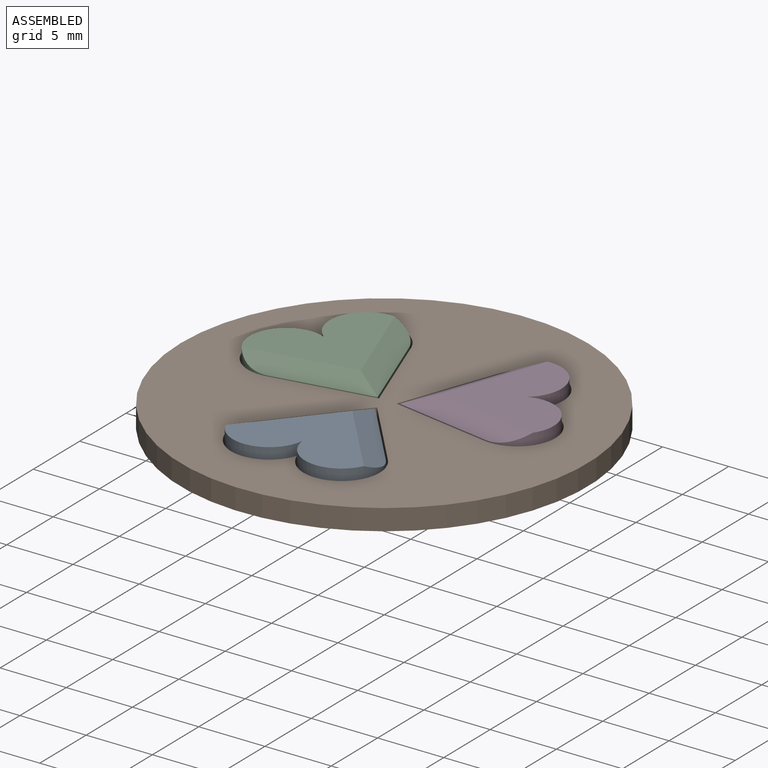
[diagram: assembled view]
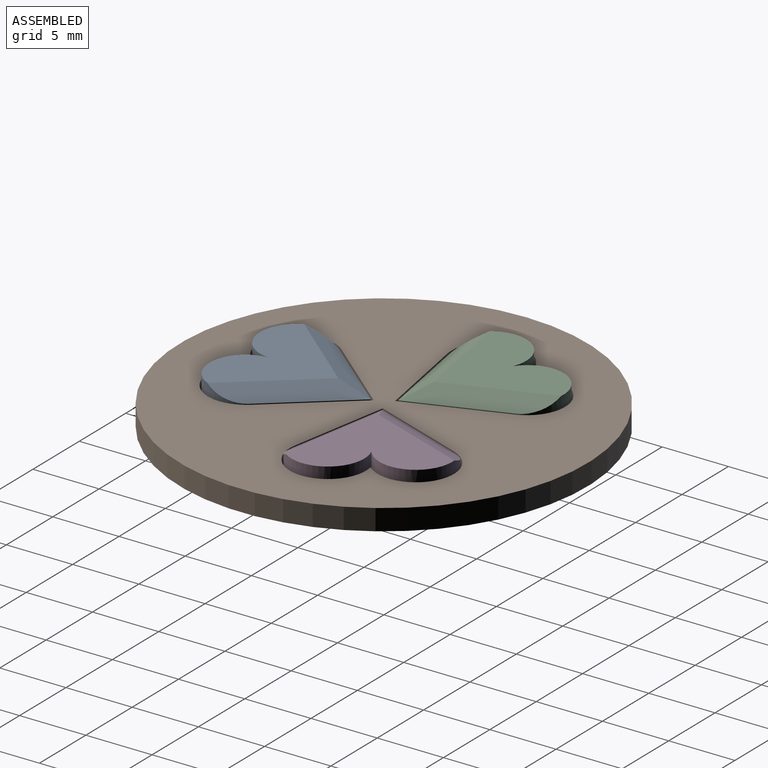
[diagram: assembled view, second angle]
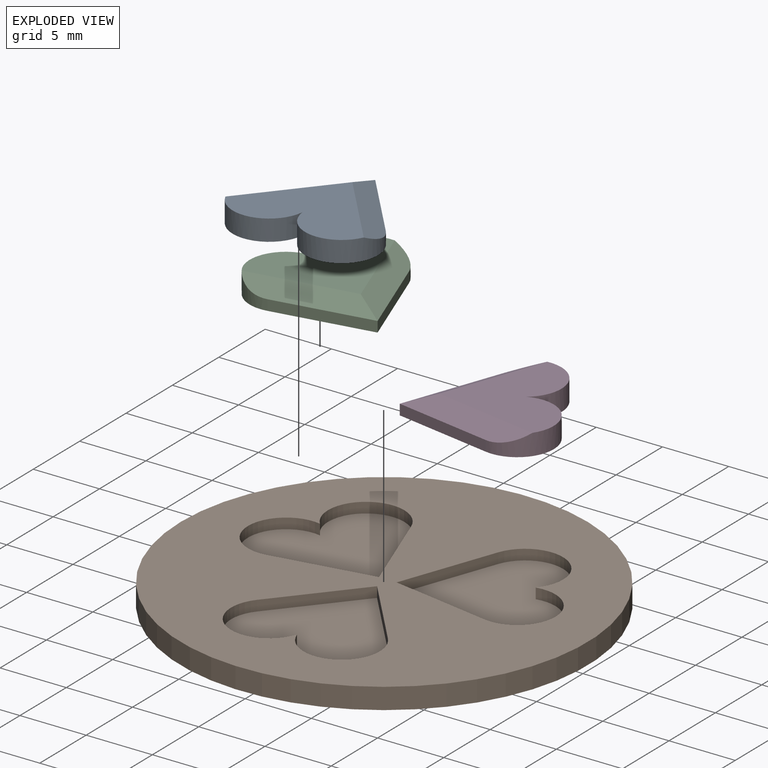
[diagram: exploded view]
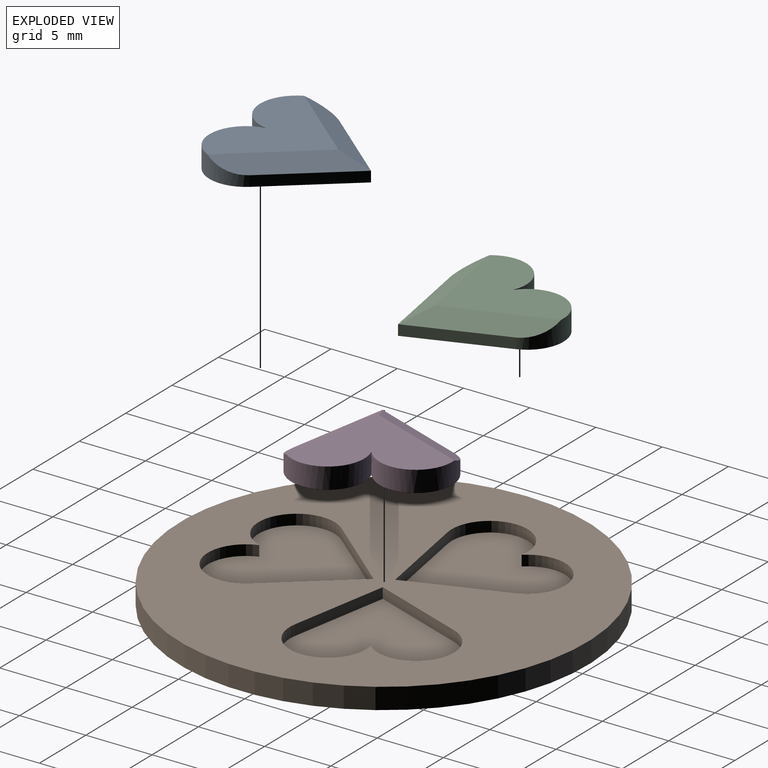
[diagram: exploded view, second angle]
ASSEMBLY  parts=4 mates=3
PART A: 8 faces, bbox 11x10.3x1.6 mm
  f0: plane 5.77x4.84mm, normal (-0.77,-0.64,0), area 6mm2, adj f1,f3,f4,f6
  f1: plane 5.77x4.84mm, normal (0.77,-0.64,0), area 6mm2, adj f0,f2,f4,f7
  f2: cylinder r=2.75mm len=5.48mm, axis (0,0,1), area 14.6mm2, adj f1,f3,f4,f5,f7
  f3: cylinder r=2.75mm len=5.48mm, axis (0,0,1), area 14.6mm2, adj f0,f2,f4,f5,f6
  f4: plane 10.96x10.28mm, normal (0,0,-1), area 70.3mm2, adj f0,f1,f2,f3
  f5: plane 10.45x7.81mm, normal (0,0,1), area 43.7mm2, adj f2,f3,f6,f7
  f6: plane 8.69x5.48mm, normal (-0.34,-0.29,0.89), area 14.9mm2, adj f0,f3,f5,f7
  f7: plane 8.69x5.48mm, normal (0.34,-0.29,0.89), area 14.9mm2, adj f1,f2,f5,f6
PART B: 18 faces, bbox 30.7x30.7x1.6 mm
  f0: plane 5.88x4.93mm, normal (-0.77,0.64,0), area 6.1mm2, adj f1,f12,f13,f15
  f1: plane 5.88x4.93mm, normal (0.77,0.64,0), area 6.1mm2, adj f0,f2,f13,f15
  f2: cylinder r=2.88mm len=5.61mm, axis (0,0,-1), area 8mm2, adj f1,f12,f13,f15
  f3: plane 7.56x1.33mm, normal (-0.17,-0.98,0), area 6.1mm2, adj f4,f9,f13,f17
  f4: plane 7.21x2.63mm, normal (-0.94,0.34,0), area 6.1mm2, adj f3,f5,f13,f17
  f5: cylinder r=2.88mm len=5.58mm, axis (0,0,-1), area 8mm2, adj f4,f9,f13,f17
  f6: plane 7.21x2.63mm, normal (0.94,0.34,0), area 6.1mm2, adj f7,f10,f13,f16
  f7: plane 7.56x1.33mm, normal (0.17,-0.98,0), area 6.1mm2, adj f6,f8,f13,f16
  f8: cylinder r=2.88mm len=5.75mm, axis (0,0,-1), area 8mm2, adj f7,f10,f13,f16
  f9: cylinder r=2.88mm len=5.75mm, axis (0,0,-1), area 8mm2, adj f3,f5,f13,f17
  f10: cylinder r=2.88mm len=5.58mm, axis (0,0,-1), area 8mm2, adj f6,f8,f13,f16
  f11: cylinder r=15.35mm len=30.71mm, axis (0,0,-1), area 153.2mm2, adj f13,f14
  f12: cylinder r=2.88mm len=5.61mm, axis (0,0,-1), area 8mm2, adj f0,f2,f13,f15
  f13: plane 30.71x30.71mm, normal (0,0,1), area 516.2mm2, adj f0,f1,f2,f3,f4,f5,f6,f7
  f14: plane 30.71x30.71mm, normal (0,0,-1), area 740.6mm2, adj f11
  f15: plane 11.22x10.61mm, normal (0,0,1), area 74.8mm2, adj f0,f1,f2,f12
  f16: plane 10.94x10.48mm, normal (0,0,1), area 74.8mm2, adj f6,f7,f8,f10
  f17: plane 10.94x10.48mm, normal (0,0,1), area 74.8mm2, adj f3,f4,f5,f9
PART C: 8 faces, bbox 10.6x10.2x1.6 mm
  f0: plane 7.41x1.31mm, normal (-0.17,0.98,0), area 6mm2, adj f1,f3,f4,f6
  f1: plane 7.07x2.57mm, normal (-0.94,-0.34,0), area 6mm2, adj f0,f2,f4,f7
  f2: cylinder r=2.75mm len=5.33mm, axis (0,0,1), area 14.6mm2, adj f1,f3,f4,f5,f7
  f3: cylinder r=2.75mm len=5.5mm, axis (0,0,1), area 14.6mm2, adj f0,f2,f4,f5,f6
  f4: plane 10.64x10.23mm, normal (0,0,-1), area 70.3mm2, adj f0,f1,f2,f3
  f5: plane 9.06x8.5mm, normal (0,0,1), area 43.7mm2, adj f2,f3,f6,f7
  f6: plane 10.14x2.58mm, normal (-0.08,0.44,0.89), area 14.9mm2, adj f0,f3,f5,f7
  f7: plane 8.87x4.92mm, normal (-0.42,-0.15,0.89), area 14.9mm2, adj f1,f2,f5,f6
PART D: 8 faces, bbox 10.6x10.2x1.6 mm
  f0: plane 7.07x2.57mm, normal (0.94,-0.34,0), area 6mm2, adj f1,f3,f4,f7
  f1: plane 7.41x1.31mm, normal (0.17,0.98,0), area 6mm2, adj f0,f2,f4,f6
  f2: cylinder r=2.75mm len=5.5mm, axis (0,0,1), area 14.6mm2, adj f1,f3,f4,f5,f6
  f3: cylinder r=2.75mm len=5.33mm, axis (0,0,1), area 14.6mm2, adj f0,f2,f4,f5,f7
  f4: plane 10.64x10.23mm, normal (0,0,-1), area 70.3mm2, adj f0,f1,f2,f3
  f5: plane 9.06x8.5mm, normal (0,0,1), area 43.7mm2, adj f2,f3,f6,f7
  f6: plane 10.14x2.58mm, normal (0.08,0.44,0.89), area 14.9mm2, adj f1,f2,f5,f7
  f7: plane 8.87x4.92mm, normal (0.42,-0.15,0.89), area 14.9mm2, adj f0,f3,f5,f6
PLACE A rot(axis=(0,0,-1),180deg) t=(0,0,5.22)mm
PLACE B rot(axis=(0,0,-1),180deg) t=(0,0,2.84)mm
PLACE C rot(axis=(0,0,-1),180deg) t=(0,0,5.22)mm
PLACE D rot(axis=(0,0,-1),180deg) t=(0,0,5.22)mm
MATE fastened C.f4 <-> B.f16  axis (0,0,-1) through (-6.24,3.6,3.63)mm
MATE fastened D.f4 <-> B.f17  axis (0,0,-1) through (6.24,3.6,3.63)mm
MATE fastened A.f4 <-> B.f15  axis (0,0,-1) through (0,-7.2,3.63)mm
